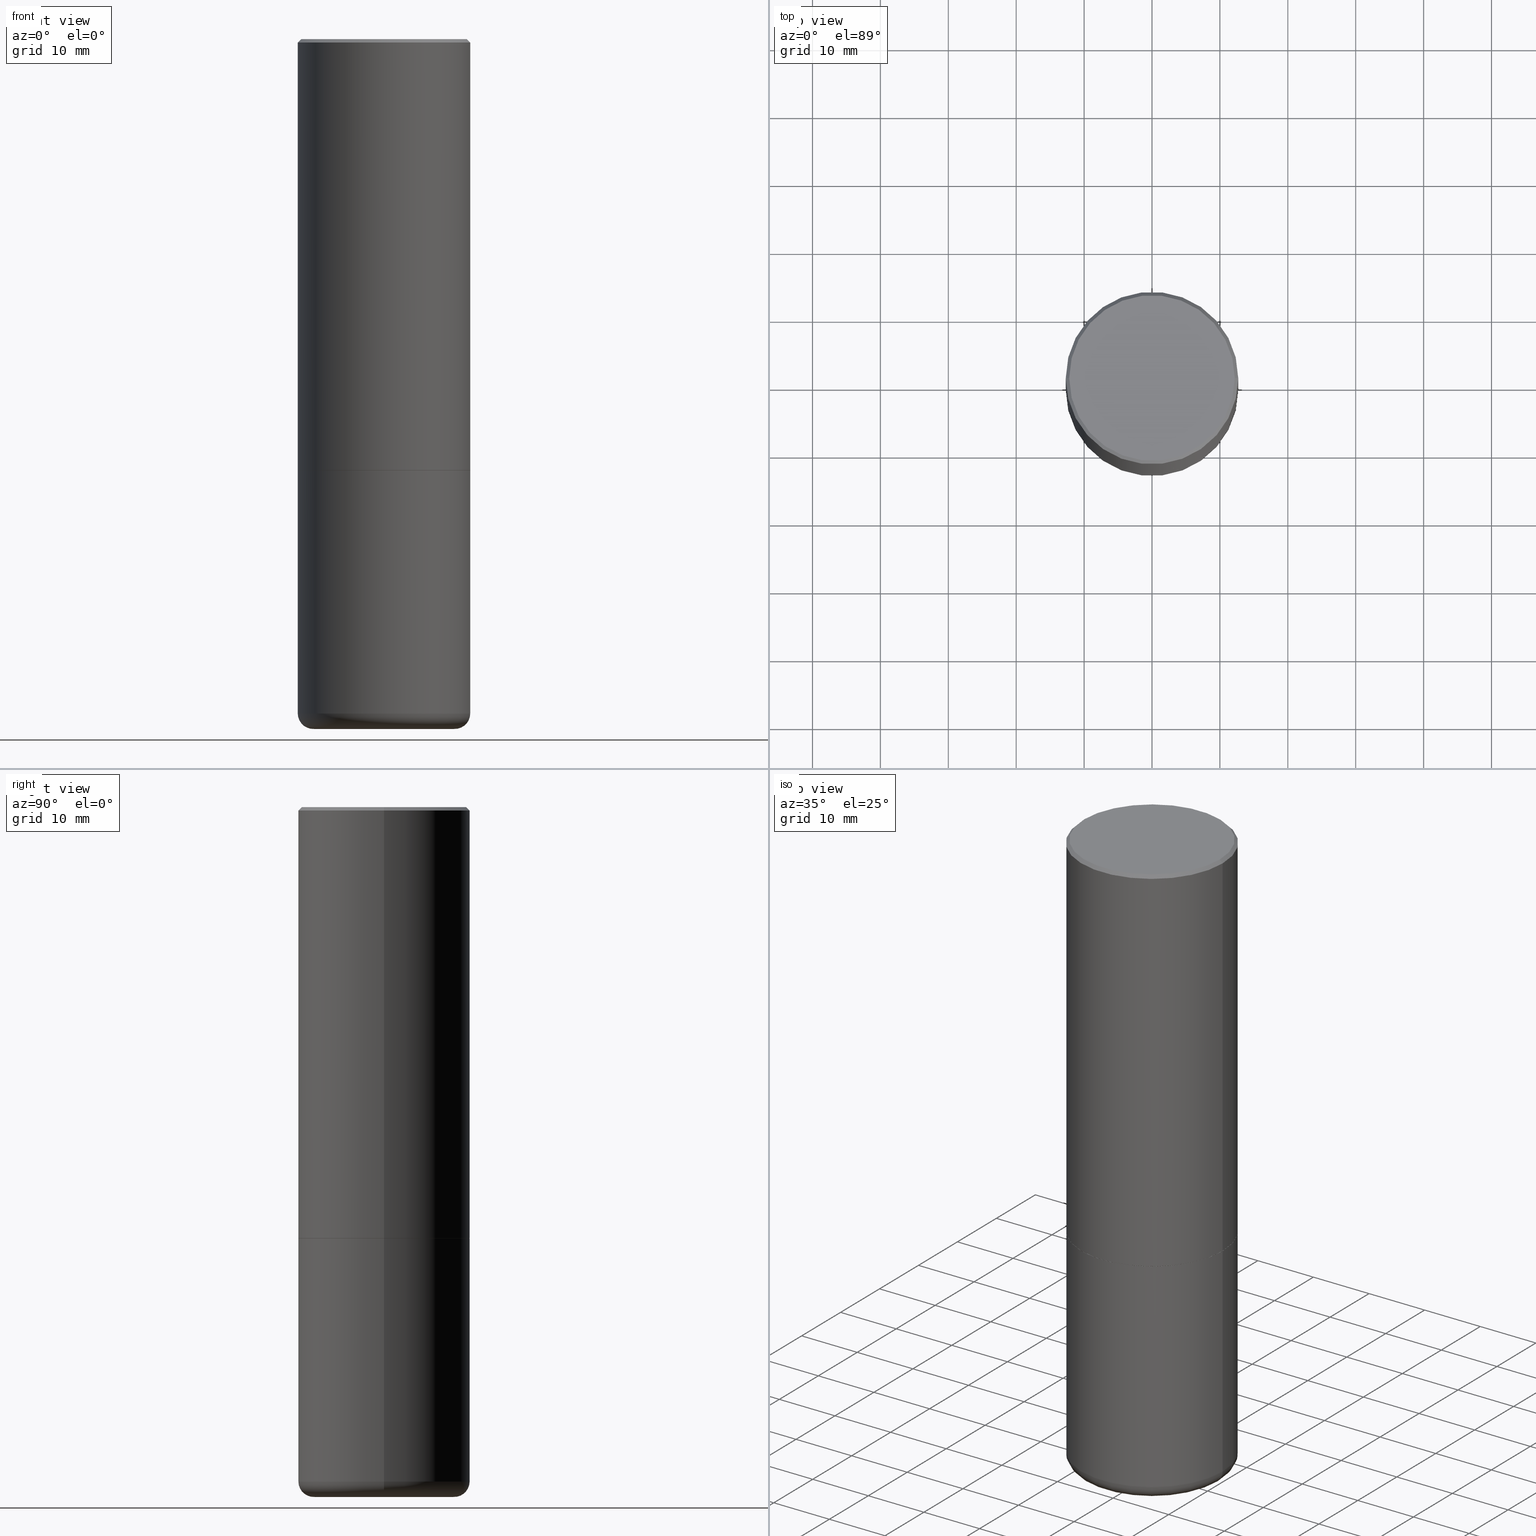
[diagram: canonical four-view strip — front | top / right | iso, engineering-drawing reading convention]
A machine part, canonical four-view strip (front | top / right | iso — engineering-drawing reading convention). The complete STEP part file that produces these views, byte-faithful:
ISO-10303-21;
HEADER;
FILE_DESCRIPTION (( 'STEP AP203' ),
    '1' );
FILE_NAME ('38197.STEP',
    '2023-03-22T20:33:56',
    ( '' ),
    ( '' ),
    'SwSTEP 2.0',
    'SolidWorks 2022',
    '' );
FILE_SCHEMA (( 'CONFIG_CONTROL_DESIGN' ));
ENDSEC;

DATA;
#1 = ORIENTED_EDGE ( 'NONE', *, *, #252, .F. ) ;
#2 = ADVANCED_FACE ( 'NONE', ( #194 ), #157, .F. ) ;
#3 = DATE_AND_TIME ( #32, #404 ) ;
#4 = FACE_OUTER_BOUND ( 'NONE', #440, .T. ) ;
#5 = AXIS2_PLACEMENT_3D ( 'NONE', #48, #201, #128 ) ;
#6 = PRODUCT_DEFINITION_FORMATION_WITH_SPECIFIED_SOURCE ( 'ANY', '', #221, .NOT_KNOWN. ) ;
#7 = DIRECTION ( 'NONE',  ( 1.000000000000000000, -6.982962677686266711E-15, 4.883557194083113462E-29 ) ) ;
#8 = DIRECTION ( 'NONE',  ( 1.000000000000000000, -6.982962677686265922E-15, 4.876176775795935793E-29 ) ) ;
#9 = DIRECTION ( 'NONE',  ( -2.445468806185136597E-29, 3.491481338843145583E-15, 1.000000000000000000 ) ) ;
#10 = FACE_OUTER_BOUND ( 'NONE', #198, .T. ) ;
#11 = FACE_OUTER_BOUND ( 'NONE', #290, .T. ) ;
#12 = CARTESIAN_POINT ( 'NONE',  ( 0.000000000000000000, 0.000000000000000000, 0.000000000000000000 ) ) ;
#13 = CIRCLE ( 'NONE', #323, 0.5000000000000000000 ) ;
#14 = EDGE_LOOP ( 'NONE', ( #214, #168, #322, #349 ) ) ;
#15 = APPROVAL_PERSON_ORGANIZATION ( #131, #420, #159 ) ;
#16 = DIRECTION ( 'NONE',  ( 0.7071067811865467956, -7.319954787623254468E-15, -0.7071067811865482389 ) ) ;
#17 = ORIENTED_EDGE ( 'NONE', *, *, #183, .F. ) ;
#18 = CARTESIAN_POINT ( 'NONE',  ( 3.351822085289405181E-15, 0.4799999999999996492, -1.669508273909558064E-15 ) ) ;
#19 = DIRECTION ( 'NONE',  ( 1.000000000000000000, -6.982962677686267499E-15, 4.876176775795936353E-29 ) ) ;
#20 = CC_DESIGN_PERSON_AND_ORGANIZATION_ASSIGNMENT ( #158, #320, ( #221 ) ) ;
#21 = ORIENTED_EDGE ( 'NONE', *, *, #156, .T. ) ;
#22 = DIRECTION ( 'NONE',  ( 2.445468806185136597E-29, -3.491481338843145583E-15, -1.000000000000000000 ) ) ;
#23 = VERTEX_POINT ( 'NONE', #265 ) ;
#24 = CARTESIAN_POINT ( 'NONE',  ( 0.4999999999999998335, -3.491481338843132566E-15, 2.438088387897967336E-29 ) ) ;
#25 = EDGE_LOOP ( 'NONE', ( #88, #39 ) ) ;
#26 = PERSON_AND_ORGANIZATION ( #408, #43 ) ;
#27 = EDGE_LOOP ( 'NONE', ( #229, #281, #257 ) ) ;
#28 = CONICAL_SURFACE ( 'NONE', #267, 0.4989999999999999991, 0.7853981633972775267 ) ;
#29 = CC_DESIGN_PERSON_AND_ORGANIZATION_ASSIGNMENT ( #441, #230, ( #6 ) ) ;
#30 = DATE_TIME_ROLE ( 'classification_date' ) ;
#31 = ORIENTED_EDGE ( 'NONE', *, *, #225, .T. ) ;
#32 = CALENDAR_DATE ( 2023, 22, 3 ) ;
#33 = VECTOR ( 'NONE', #141, 39.37007874015748143 ) ;
#34 = CC_DESIGN_APPROVAL ( #112, ( #152 ) ) ;
#35 = ORIENTED_EDGE ( 'NONE', *, *, #331, .T. ) ;
#36 = EDGE_CURVE ( 'NONE', #422, #287, #150, .T. ) ;
#37 = ORIENTED_EDGE ( 'NONE', *, *, #311, .T. ) ;
#38 = DIRECTION ( 'NONE',  ( 1.000000000000000000, -6.982962677686266711E-15, 0.000000000000000000 ) ) ;
#39 = ORIENTED_EDGE ( 'NONE', *, *, #60, .F. ) ;
#40 = DIRECTION ( 'NONE',  ( -2.445468806185136597E-29, 3.491481338843145583E-15, 1.000000000000000000 ) ) ;
#41 = CARTESIAN_POINT ( 'NONE',  ( 0.000000000000000000, 0.000000000000000000, 0.000000000000000000 ) ) ;
#42 = CIRCLE ( 'NONE', #285, 0.5000000000000000000 ) ;
#43 = ORGANIZATION ( 'UNSPECIFIED', 'UNSPECIFIED', '' ) ;
#44 = CARTESIAN_POINT ( 'NONE',  ( 1.060082321005189927E-27, -1.513516603469176358E-13, -43.34883840366333629 ) ) ;
#45 = DIRECTION ( 'NONE',  ( 7.105427357601001859E-15, 1.000000000000000000, -3.491481338843145583E-15 ) ) ;
#46 = CARTESIAN_POINT ( 'NONE',  ( 9.562084660884571289E-29, -1.365212268072139138E-14, -3.910123341872087988 ) ) ;
#47 = CARTESIAN_POINT ( 'NONE',  ( -0.4799999999999996492, 3.386736898677836830E-15, 1.280553747027767124E-17 ) ) ;
#48 = CARTESIAN_POINT ( 'NONE',  ( 9.562084660884571289E-29, -1.365212268072139138E-14, -3.910123341872087988 ) ) ;
#49 = DIRECTION ( 'NONE',  ( -0.7071067811864267805, 7.493145998869918709E-15, 0.7071067811866682540 ) ) ;
#50 = AXIS2_PLACEMENT_3D ( 'NONE', #341, #98, #103 ) ;
#51 = ORIENTED_EDGE ( 'NONE', *, *, #331, .F. ) ;
#52 = DIRECTION ( 'NONE',  ( 1.000000000000000000, -6.982962677686266711E-15, 0.000000000000000000 ) ) ;
#53 = EDGE_CURVE ( 'NONE', #391, #155, #396, .T. ) ;
#54 = EDGE_LOOP ( 'NONE', ( #35, #151 ) ) ;
#55 = AXIS2_PLACEMENT_3D ( 'NONE', #44, #304, #234 ) ;
#56 = LOCAL_TIME ( 16, 33, 56.00000000000000000, #399 ) ;
#57 = ORIENTED_EDGE ( 'NONE', *, *, #425, .T. ) ;
#58 = CIRCLE ( 'NONE', #74, 0.08999999999999999667 ) ;
#59 = CONICAL_SURFACE ( 'NONE', #192, 0.4999999999999996669, 0.7853981633974472798 ) ;
#60 = EDGE_CURVE ( 'NONE', #193, #308, #394, .T. ) ;
#61 = ORIENTED_EDGE ( 'NONE', *, *, #280, .T. ) ;
#62 = ORIENTED_EDGE ( 'NONE', *, *, #36, .F. ) ;
#63 = MANIFOLD_SOLID_BREP ( 'Body-Move/Copy2[1]', #363 ) ;
#64 = ADVANCED_FACE ( 'NONE', ( #84 ), #215, .F. ) ;
#65 = AXIS2_PLACEMENT_3D ( 'NONE', #105, #177, #240 ) ;
#66 = ORIENTED_EDGE ( 'NONE', *, *, #297, .T. ) ;
#67 = DIRECTION ( 'NONE',  ( -2.445468806185136597E-29, 3.491481338843145583E-15, 1.000000000000000000 ) ) ;
#68 = DIRECTION ( 'NONE',  ( 1.000000000000000000, -6.982962677686269077E-15, 0.000000000000000000 ) ) ;
#69 = DATE_AND_TIME ( #368, #182 ) ;
#70 = FACE_OUTER_BOUND ( 'NONE', #14, .T. ) ;
#71 = PLANE ( 'NONE',  #345 ) ;
#72 = DIRECTION ( 'NONE',  ( -2.445468806185136597E-29, 3.491481338843145583E-15, 1.000000000000000000 ) ) ;
#73 = CARTESIAN_POINT ( 'NONE',  ( 0.4999999999999996669, -3.500078625662626318E-15, -0.02000000000000002123 ) ) ;
#74 = AXIS2_PLACEMENT_3D ( 'NONE', #145, #45, #175 ) ;
#75 = ADVANCED_FACE ( 'NONE', ( #407 ), #343, .T. ) ;
#76 = CARTESIAN_POINT ( 'NONE',  ( 6.113672015462842613E-29, -8.728703347107864943E-15, -2.500000000000000000 ) ) ;
#77 = CARTESIAN_POINT ( 'NONE',  ( 9.781875224740545266E-29, -1.396592535537258075E-14, -3.999999999999999556 ) ) ;
#78 = ORIENTED_EDGE ( 'NONE', *, *, #379, .T. ) ;
#79 = CARTESIAN_POINT ( 'NONE',  ( -0.5000000000000000000, -8.448070674724403070E-16, -2.499000000000000110 ) ) ;
#80 = DIRECTION ( 'NONE',  ( 1.000000000000000000, -6.982962677686269077E-15, 0.000000000000000000 ) ) ;
#81 = PERSON_AND_ORGANIZATION_ROLE ( 'creator' ) ;
#82 = PLANE ( 'NONE',  #397 ) ;
#83 = EDGE_CURVE ( 'NONE', #187, #155, #357, .T. ) ;
#84 = FACE_OUTER_BOUND ( 'NONE', #25, .T. ) ;
#85 = AXIS2_PLACEMENT_3D ( 'NONE', #302, #347, #8 ) ;
#86 = ORIENTED_EDGE ( 'NONE', *, *, #218, .T. ) ;
#87 = LOCAL_TIME ( 16, 33, 56.00000000000000000, #178 ) ;
#88 = ORIENTED_EDGE ( 'NONE', *, *, #169, .F. ) ;
#89 = FACE_OUTER_BOUND ( 'NONE', #113, .T. ) ;
#90 = CARTESIAN_POINT ( 'NONE',  ( 4.890937612370278413E-31, -6.982962677686297772E-17, -0.02000000000000002123 ) ) ;
#91 = VERTEX_POINT ( 'NONE', #336 ) ;
#92 = APPLICATION_PROTOCOL_DEFINITION ( 'international standard', 'config_control_design', 1994, #291 ) ;
#93 = ADVANCED_FACE ( 'NONE', ( #272 ), #206, .T. ) ;
#94 = AXIS2_PLACEMENT_3D ( 'NONE', #330, #411, #110 ) ;
#95 = EDGE_LOOP ( 'NONE', ( #97, #78, #124 ) ) ;
#96 = DATE_AND_TIME ( #295, #56 ) ;
#97 = ORIENTED_EDGE ( 'NONE', *, *, #355, .F. ) ;
#98 = DIRECTION ( 'NONE',  ( -2.445468806185136597E-29, 3.491481338843145583E-15, 1.000000000000000000 ) ) ;
#99 = VECTOR ( 'NONE', #312, 39.37007874015748143 ) ;
#100 = VERTEX_POINT ( 'NONE', #47 ) ;
#101 = DIRECTION ( 'NONE',  ( -0.9986295347545742773, 6.790662755453666100E-15, -0.05233595624293709697 ) ) ;
#102 = DIRECTION ( 'NONE',  ( 1.000000000000000000, -6.982962677686266711E-15, 0.000000000000000000 ) ) ;
#103 = DIRECTION ( 'NONE',  ( 1.000000000000000000, -6.982962677686269077E-15, 0.000000000000000000 ) ) ;
#104 = CC_DESIGN_PERSON_AND_ORGANIZATION_ASSIGNMENT ( #409, #259, ( #6 ) ) ;
#105 = CARTESIAN_POINT ( 'NONE',  ( 6.111226546656657010E-29, -8.725211865769021935E-15, -2.499000000000000110 ) ) ;
#106 = LINE ( 'NONE', #176, #33 ) ;
#107 = DIRECTION ( 'NONE',  ( -2.445468806185136597E-29, 3.491481338843145583E-15, 1.000000000000000000 ) ) ;
#108 = CIRCLE ( 'NONE', #94, 0.4999999999999996669 ) ;
#109 = DIRECTION ( 'NONE',  ( 2.445468806185136597E-29, -3.491481338843145583E-15, -1.000000000000000000 ) ) ;
#110 = DIRECTION ( 'NONE',  ( 1.000000000000000000, -6.982962677686266711E-15, 0.000000000000000000 ) ) ;
#111 = CALENDAR_DATE ( 2023, 22, 3 ) ;
#112 = APPROVAL ( #286, 'UNSPECIFIED' ) ;
#113 = EDGE_LOOP ( 'NONE', ( #299, #51, #203, #165 ) ) ;
#114 = DIRECTION ( 'NONE',  ( 1.000000000000000000, -6.982962677686267499E-15, 4.876176775795936353E-29 ) ) ;
#115 = CARTESIAN_POINT ( 'NONE',  ( 0.000000000000000000, 0.000000000000000000, 0.000000000000000000 ) ) ;
#116 = AXIS2_PLACEMENT_3D ( 'NONE', #213, #385, #310 ) ;
#117 = CONICAL_SURFACE ( 'NONE', #395, 0.4999999999999996669, 0.7853981633974472798 ) ;
#118 = ORIENTED_EDGE ( 'NONE', *, *, #53, .T. ) ;
#119 =( CONVERSION_BASED_UNIT ( 'INCH', #288 ) LENGTH_UNIT ( ) NAMED_UNIT ( #369 ) );
#120 = AXIS2_PLACEMENT_3D ( 'NONE', #377, #9, #139 ) ;
#121 = EDGE_CURVE ( 'NONE', #422, #23, #196, .T. ) ;
#122 = DIRECTION ( 'NONE',  ( -6.982962677686266711E-15, -1.000000000000000000, 3.491481338843145583E-15 ) ) ;
#123 = AXIS2_PLACEMENT_3D ( 'NONE', #167, #40, #335 ) ;
#124 = ORIENTED_EDGE ( 'NONE', *, *, #319, .F. ) ;
#125 =( NAMED_UNIT ( * ) SI_UNIT ( $, .STERADIAN. ) SOLID_ANGLE_UNIT ( ) );
#126 = ORIENTED_EDGE ( 'NONE', *, *, #60, .T. ) ;
#127 = APPROVAL_STATUS ( 'not_yet_approved' ) ;
#128 = DIRECTION ( 'NONE',  ( 1.000000000000000000, -6.982962677686266711E-15, 0.000000000000000000 ) ) ;
#129 = DIRECTION ( 'NONE',  ( -1.000000000000000000, 6.982962677686265922E-15, 0.000000000000000000 ) ) ;
#130 = CC_DESIGN_DATE_AND_TIME_ASSIGNMENT ( #3, #30, ( #432 ) ) ;
#131 = PERSON_AND_ORGANIZATION ( #408, #43 ) ;
#132 = DIRECTION ( 'NONE',  ( 1.000000000000000000, -6.982962677686266711E-15, 0.000000000000000000 ) ) ;
#133 = AXIS2_PLACEMENT_3D ( 'NONE', #374, #378, #413 ) ;
#134 = CC_DESIGN_SECURITY_CLASSIFICATION ( #432, ( #6 ) ) ;
#135 = CARTESIAN_POINT ( 'NONE',  ( -0.4999999999999996669, 3.421651712066268085E-15, -0.02000000000000002123 ) ) ;
#136 = EDGE_CURVE ( 'NONE', #391, #360, #171, .T. ) ;
#137 = DIRECTION ( 'NONE',  ( 1.000000000000000000, -6.982962677686265133E-15, 0.000000000000000000 ) ) ;
#138 = DIRECTION ( 'NONE',  ( -2.445468806185136597E-29, 3.491481338843145583E-15, 1.000000000000000000 ) ) ;
#139 = DIRECTION ( 'NONE',  ( 1.000000000000000000, -6.982962677686267499E-15, 4.876036955247132767E-29 ) ) ;
#140 = CARTESIAN_POINT ( 'NONE',  ( 3.491481338843194098E-15, 0.4999999999999912292, -2.500000000000001776 ) ) ;
#141 = DIRECTION ( 'NONE',  ( 0.9986295347545742773, -7.033825938271998700E-15, -0.05233595624293709697 ) ) ;
#142 = CARTESIAN_POINT ( 'NONE',  ( -0.4999999999999998335, 3.552713678800499746E-15, -2.459467545127452330E-29 ) ) ;
#143 = VECTOR ( 'NONE', #16, 39.37007874015748143 ) ;
#144 = EDGE_CURVE ( 'NONE', #287, #253, #339, .T. ) ;
#145 = CARTESIAN_POINT ( 'NONE',  ( -0.4099999999999999756, -1.073889746410498118E-14, -3.910123341872087988 ) ) ;
#146 = COORDINATED_UNIVERSAL_TIME_OFFSET ( 5, 0, .BEHIND. ) ;
#147 = CARTESIAN_POINT ( 'NONE',  ( 9.562084660884571289E-29, -1.365212268072139138E-14, -3.910123341872087988 ) ) ;
#148 = ADVANCED_BREP_SHAPE_REPRESENTATION ( '38197', ( #63, #361, #376 ), #268 ) ;
#149 = DIRECTION ( 'NONE',  ( -1.000000000000000000, 6.982962677686266711E-15, 0.000000000000000000 ) ) ;
#150 = CIRCLE ( 'NONE', #318, 0.08999999999999999667 ) ;
#151 = ORIENTED_EDGE ( 'NONE', *, *, #263, .T. ) ;
#152 = PRODUCT_DEFINITION ( 'UNKNOWN', '', #6, #356 ) ;
#153 = PRODUCT_DEFINITION_SHAPE ( 'NONE', 'NONE',  #152 ) ;
#154 = ORIENTED_EDGE ( 'NONE', *, *, #263, .F. ) ;
#155 = VERTEX_POINT ( 'NONE', #135 ) ;
#156 = EDGE_CURVE ( 'NONE', #193, #391, #246, .T. ) ;
#157 = CONICAL_SURFACE ( 'NONE', #392, 751.2258538476644389, 1.518436449235073482 ) ;
#158 = PERSON_AND_ORGANIZATION ( #408, #43 ) ;
#159 = APPROVAL_ROLE ( '' ) ;
#160 =( NAMED_UNIT ( * ) PLANE_ANGLE_UNIT ( ) SI_UNIT ( $, .RADIAN. ) );
#161 = AXIS2_PLACEMENT_3D ( 'NONE', #147, #174, #38 ) ;
#162 = CC_DESIGN_APPROVAL ( #342, ( #6 ) ) ;
#163 = CALENDAR_DATE ( 2023, 22, 3 ) ;
#164 = ORIENTED_EDGE ( 'NONE', *, *, #297, .F. ) ;
#165 = ORIENTED_EDGE ( 'NONE', *, *, #183, .T. ) ;
#166 = PERSON_AND_ORGANIZATION_ROLE ( 'classification_officer' ) ;
#167 = CARTESIAN_POINT ( 'NONE',  ( 0.000000000000000000, 0.000000000000000000, 0.000000000000000000 ) ) ;
#168 = ORIENTED_EDGE ( 'NONE', *, *, #319, .T. ) ;
#169 = EDGE_CURVE ( 'NONE', #308, #193, #254, .T. ) ;
#170 = DIRECTION ( 'NONE',  ( -2.445468806185136597E-29, 3.491481338843145583E-15, 1.000000000000000000 ) ) ;
#171 = CIRCLE ( 'NONE', #65, 0.5000000000000000000 ) ;
#172 = VECTOR ( 'NONE', #251, 39.37007874015748143 ) ;
#173 = CARTESIAN_POINT ( 'NONE',  ( 6.113672015462842613E-29, -8.728703347107866520E-15, -2.500000000000000444 ) ) ;
#174 = DIRECTION ( 'NONE',  ( -2.445468806185136597E-29, 3.491481338843145583E-15, 1.000000000000000000 ) ) ;
#175 = DIRECTION ( 'NONE',  ( -1.000000000000000000, 7.105427357600990815E-15, 0.000000000000000000 ) ) ;
#176 = CARTESIAN_POINT ( 'NONE',  ( 2.030142708170916677E-18, -1.389176511687253156E-14, -3.978759663505856636 ) ) ;
#177 = DIRECTION ( 'NONE',  ( -2.445468806185136597E-29, 3.491481338843145583E-15, 1.000000000000000000 ) ) ;
#178 = COORDINATED_UNIVERSAL_TIME_OFFSET ( 5, 0, .BEHIND. ) ;
#179 = EDGE_LOOP ( 'NONE', ( #316, #21, #224, #427 ) ) ;
#180 = DIRECTION ( 'NONE',  ( -2.445468806185136597E-29, 3.491481338843145583E-15, 1.000000000000000000 ) ) ;
#181 = DIRECTION ( 'NONE',  ( -2.445468806185136597E-29, 3.491481338843145583E-15, 1.000000000000000000 ) ) ;
#182 = LOCAL_TIME ( 16, 33, 56.00000000000000000, #348 ) ;
#183 = EDGE_CURVE ( 'NONE', #155, #187, #108, .T. ) ;
#184 = FACE_OUTER_BOUND ( 'NONE', #54, .T. ) ;
#185 = DIRECTION ( 'NONE',  ( 1.000000000000000000, -6.982962677686269077E-15, 0.000000000000000000 ) ) ;
#186 = PERSON_AND_ORGANIZATION ( #408, #43 ) ;
#187 = VERTEX_POINT ( 'NONE', #73 ) ;
#188 = DIRECTION ( 'NONE',  ( 2.438088387897960049E-29, -3.491481338843145188E-15, -1.000000000000000000 ) ) ;
#189 = CC_DESIGN_PERSON_AND_ORGANIZATION_ASSIGNMENT ( #279, #81, ( #152 ) ) ;
#190 = LINE ( 'NONE', #220, #242 ) ;
#191 = TOROIDAL_SURFACE ( 'NONE', #300, 0.4099999999999999756, 0.08999999999999998279 ) ;
#192 = AXIS2_PLACEMENT_3D ( 'NONE', #415, #109, #381 ) ;
#193 = VERTEX_POINT ( 'NONE', #237 ) ;
#194 = FACE_OUTER_BOUND ( 'NONE', #95, .T. ) ;
#195 = EDGE_CURVE ( 'NONE', #253, #314, #275, .T. ) ;
#196 = CIRCLE ( 'NONE', #258, 0.4052897639381357053 ) ;
#197 = ORIENTED_EDGE ( 'NONE', *, *, #195, .F. ) ;
#198 = EDGE_LOOP ( 'NONE', ( #384, #66 ) ) ;
#199 = AXIS2_PLACEMENT_3D ( 'NONE', #269, #67, #327 ) ;
#200 = EDGE_LOOP ( 'NONE', ( #380, #57, #197, #296 ) ) ;
#201 = DIRECTION ( 'NONE',  ( -2.445468806185136597E-29, 3.491481338843145583E-15, 1.000000000000000000 ) ) ;
#202 = ADVANCED_FACE ( 'NONE', ( #305 ), #375, .T. ) ;
#203 = ORIENTED_EDGE ( 'NONE', *, *, #256, .T. ) ;
#204 = PERSON_AND_ORGANIZATION ( #408, #43 ) ;
#205 = LINE ( 'NONE', #273, #216 ) ;
#206 = CYLINDRICAL_SURFACE ( 'NONE', #386, 0.4999999999999998335 ) ;
#207 = AXIS2_PLACEMENT_3D ( 'NONE', #173, #181, #52 ) ;
#208 = DIRECTION ( 'NONE',  ( -0.7071067811865467956, 2.468850131082249172E-15, -0.7071067811865482389 ) ) ;
#209 = APPROVAL_PERSON_ORGANIZATION ( #186, #342, #426 ) ;
#210 = LINE ( 'NONE', #372, #143 ) ;
#211 = DIRECTION ( 'NONE',  ( -2.445468806185136597E-29, 3.491481338843145583E-15, 1.000000000000000000 ) ) ;
#212 = DIRECTION ( 'NONE',  ( -2.445468806185136597E-29, 3.491481338843145583E-15, 1.000000000000000000 ) ) ;
#213 = CARTESIAN_POINT ( 'NONE',  ( 6.113672015462842613E-29, -8.728703347107866520E-15, -2.500000000000000444 ) ) ;
#214 = ORIENTED_EDGE ( 'NONE', *, *, #225, .F. ) ;
#215 = PLANE ( 'NONE',  #85 ) ;
#216 = VECTOR ( 'NONE', #101, 39.37007874015748143 ) ;
#217 = DATE_AND_TIME ( #111, #87 ) ;
#218 = EDGE_CURVE ( 'NONE', #340, #187, #210, .T. ) ;
#219 = EDGE_LOOP ( 'NONE', ( #154, #86, #417, #359 ) ) ;
#220 = CARTESIAN_POINT ( 'NONE',  ( -0.5000000000000000000, 3.552713678800500929E-15, -2.459467545127452891E-29 ) ) ;
#221 = PRODUCT ( '38197', '38197', '', ( #433 ) ) ;
#222 = AXIS2_PLACEMENT_3D ( 'NONE', #46, #180, #7 ) ;
#223 = VECTOR ( 'NONE', #418, 39.37007874015748143 ) ;
#224 = ORIENTED_EDGE ( 'NONE', *, *, #311, .F. ) ;
#225 = EDGE_CURVE ( 'NONE', #23, #313, #58, .T. ) ;
#226 = VECTOR ( 'NONE', #274, 39.37007874015748143 ) ;
#227 = CC_DESIGN_DATE_AND_TIME_ASSIGNMENT ( #366, #289, ( #152 ) ) ;
#228 = APPROVAL_DATE_TIME ( #69, #342 ) ;
#229 = ORIENTED_EDGE ( 'NONE', *, *, #379, .F. ) ;
#230 = PERSON_AND_ORGANIZATION_ROLE ( 'design_supplier' ) ;
#231 = EDGE_LOOP ( 'NONE', ( #321, #247, #235, #17 ) ) ;
#232 = CIRCLE ( 'NONE', #5, 0.5000000000000000000 ) ;
#233 = ADVANCED_FACE ( 'NONE', ( #10 ), #71, .F. ) ;
#234 = DIRECTION ( 'NONE',  ( -1.000000000000000000, 6.982962677686265922E-15, 0.000000000000000000 ) ) ;
#235 = ORIENTED_EDGE ( 'NONE', *, *, #429, .T. ) ;
#236 = CARTESIAN_POINT ( 'NONE',  ( 6.111226546656657010E-29, -8.725211865769021935E-15, -2.499000000000000110 ) ) ;
#237 = CARTESIAN_POINT ( 'NONE',  ( -0.4989999999999999991, -5.177796641316744197E-15, -2.500000000000000444 ) ) ;
#238 = COORDINATED_UNIVERSAL_TIME_OFFSET ( 5, 0, .BEHIND. ) ;
#239 = FACE_OUTER_BOUND ( 'NONE', #367, .T. ) ;
#240 = DIRECTION ( 'NONE',  ( 1.000000000000000000, -6.982962677686265133E-15, 0.000000000000000000 ) ) ;
#241 = CARTESIAN_POINT ( 'NONE',  ( -0.5000000000000000000, -7.637699335114127230E-15, -3.910123341872087988 ) ) ;
#242 = VECTOR ( 'NONE', #346, 39.37007874015748143 ) ;
#243 = DIRECTION ( 'NONE',  ( -2.445468806185136597E-29, 3.491481338843145583E-15, 1.000000000000000000 ) ) ;
#244 = CARTESIAN_POINT ( 'NONE',  ( 0.4989999999999999991, -1.221320172327331386E-14, -2.500000000000000444 ) ) ;
#245 = CARTESIAN_POINT ( 'NONE',  ( 6.113672015462842613E-29, -8.728703347107864943E-15, -2.500000000000000000 ) ) ;
#246 = LINE ( 'NONE', #416, #250 ) ;
#247 = ORIENTED_EDGE ( 'NONE', *, *, #136, .T. ) ;
#248 = ADVANCED_FACE ( 'NONE', ( #282 ), #421, .T. ) ;
#249 = DIRECTION ( 'NONE',  ( -2.445468806185136597E-29, 3.491481338843145583E-15, 1.000000000000000000 ) ) ;
#250 = VECTOR ( 'NONE', #49, 39.37007874015748143 ) ;
#251 = DIRECTION ( 'NONE',  ( 0.7071067811864267805, -2.468850131080992517E-15, 0.7071067811866682540 ) ) ;
#252 = EDGE_CURVE ( 'NONE', #287, #313, #403, .T. ) ;
#253 = VERTEX_POINT ( 'NONE', #442 ) ;
#254 = CIRCLE ( 'NONE', #293, 0.4989999999999999991 ) ;
#255 = DIRECTION ( 'NONE',  ( 0.000000000000000000, 0.000000000000000000, 1.000000000000000000 ) ) ;
#256 = EDGE_CURVE ( 'NONE', #100, #155, #365, .T. ) ;
#257 = ORIENTED_EDGE ( 'NONE', *, *, #121, .F. ) ;
#258 = AXIS2_PLACEMENT_3D ( 'NONE', #77, #211, #185 ) ;
#259 = PERSON_AND_ORGANIZATION_ROLE ( 'creator' ) ;
#260 = DIRECTION ( 'NONE',  ( 1.000000000000000000, 0.000000000000000000, 0.000000000000000000 ) ) ;
#261 = PRODUCT_RELATED_PRODUCT_CATEGORY ( 'detail', '', ( #221 ) ) ;
#262 = ORIENTED_EDGE ( 'NONE', *, *, #136, .F. ) ;
#263 = EDGE_CURVE ( 'NONE', #340, #100, #315, .T. ) ;
#264 = CARTESIAN_POINT ( 'NONE',  ( 9.562084660884571289E-29, -1.365212268072139138E-14, -3.910123341872087988 ) ) ;
#265 = CARTESIAN_POINT ( 'NONE',  ( -0.4052897639381357053, -1.059278869042589352E-14, -3.999999999999999556 ) ) ;
#266 = APPROVAL_DATE_TIME ( #96, #420 ) ;
#267 = AXIS2_PLACEMENT_3D ( 'NONE', #412, #170, #132 ) ;
#268 =( GEOMETRIC_REPRESENTATION_CONTEXT ( 3 ) GLOBAL_UNCERTAINTY_ASSIGNED_CONTEXT ( ( #292 ) ) GLOBAL_UNIT_ASSIGNED_CONTEXT ( ( #119, #160, #125 ) ) REPRESENTATION_CONTEXT ( 'NONE', 'WORKASPACE' ) );
#269 = CARTESIAN_POINT ( 'NONE',  ( -3.131554243005659264E-46, 4.471029511141341874E-32, 1.280553747030123384E-17 ) ) ;
#270 = CARTESIAN_POINT ( 'NONE',  ( 6.113672015462842613E-29, -8.728703347107866520E-15, -2.500000000000000444 ) ) ;
#271 = CARTESIAN_POINT ( 'NONE',  ( -0.4999999999999996669, 3.421651712066268085E-15, -0.02000000000000002123 ) ) ;
#272 = FACE_OUTER_BOUND ( 'NONE', #231, .T. ) ;
#273 = CARTESIAN_POINT ( 'NONE',  ( -2.030142707976318404E-18, -1.389176511687253156E-14, -3.978759663505856636 ) ) ;
#274 = DIRECTION ( 'NONE',  ( -2.445468806185136877E-29, 3.491481338843145188E-15, 1.000000000000000000 ) ) ;
#275 = CIRCLE ( 'NONE', #364, 0.5000000000000000000 ) ;
#276 = FACE_OUTER_BOUND ( 'NONE', #219, .T. ) ;
#277 = CARTESIAN_POINT ( 'NONE',  ( 0.5000000000000000000, -3.491481338843133355E-15, 2.438088387897967896E-29 ) ) ;
#278 = DIRECTION ( 'NONE',  ( 2.438088387897960049E-29, -3.491481338843145188E-15, -1.000000000000000000 ) ) ;
#279 = PERSON_AND_ORGANIZATION ( #408, #43 ) ;
#280 = EDGE_CURVE ( 'NONE', #313, #287, #232, .T. ) ;
#281 = ORIENTED_EDGE ( 'NONE', *, *, #355, .T. ) ;
#282 = FACE_OUTER_BOUND ( 'NONE', #362, .T. ) ;
#283 = ORIENTED_EDGE ( 'NONE', *, *, #121, .T. ) ;
#284 = CARTESIAN_POINT ( 'NONE',  ( 0.4052897639381357053, -1.679604865060086105E-14, -3.999999999999999556 ) ) ;
#285 = AXIS2_PLACEMENT_3D ( 'NONE', #236, #72, #137 ) ;
#286 = APPROVAL_STATUS ( 'not_yet_approved' ) ;
#287 = VERTEX_POINT ( 'NONE', #401 ) ;
#288 = LENGTH_MEASURE_WITH_UNIT ( LENGTH_MEASURE( 0.02539999999999999897 ), #354 );
#289 = DATE_TIME_ROLE ( 'creation_date' ) ;
#290 = EDGE_LOOP ( 'NONE', ( #298, #61, #326, #164 ) ) ;
#291 = APPLICATION_CONTEXT ( 'configuration controlled 3d designs of mechanical parts and assemblies' ) ;
#292 = UNCERTAINTY_MEASURE_WITH_UNIT (LENGTH_MEASURE( 1.000000000000000082E-05 ), #119, 'distance_accuracy_value', 'NONE');
#293 = AXIS2_PLACEMENT_3D ( 'NONE', #270, #138, #102 ) ;
#294 = ADVANCED_FACE ( 'NONE', ( #11 ), #306, .T. ) ;
#295 = CALENDAR_DATE ( 2023, 22, 3 ) ;
#296 = ORIENTED_EDGE ( 'NONE', *, *, #144, .F. ) ;
#297 = EDGE_CURVE ( 'NONE', #314, #253, #13, .T. ) ;
#298 = ORIENTED_EDGE ( 'NONE', *, *, #425, .F. ) ;
#299 = ORIENTED_EDGE ( 'NONE', *, *, #218, .F. ) ;
#300 = AXIS2_PLACEMENT_3D ( 'NONE', #264, #406, #410 ) ;
#301 = FACE_OUTER_BOUND ( 'NONE', #27, .T. ) ;
#302 = CARTESIAN_POINT ( 'NONE',  ( 6.113672015462842613E-29, -8.728703347107864943E-15, -2.500000000000000000 ) ) ;
#303 = ADVANCED_FACE ( 'NONE', ( #239 ), #191, .T. ) ;
#304 = DIRECTION ( 'NONE',  ( 2.445468806185136597E-29, -3.491481338843145583E-15, -1.000000000000000000 ) ) ;
#305 = FACE_OUTER_BOUND ( 'NONE', #179, .T. ) ;
#306 = CYLINDRICAL_SURFACE ( 'NONE', #123, 0.5000000000000000000 ) ;
#307 = DIRECTION ( 'NONE',  ( 1.000000000000000000, -6.982962677686266711E-15, 4.876176775795935793E-29 ) ) ;
#308 = VERTEX_POINT ( 'NONE', #244 ) ;
#309 = CONICAL_SURFACE ( 'NONE', #55, 751.2258538476644389, 1.518436449235073482 ) ;
#310 = DIRECTION ( 'NONE',  ( 1.000000000000000000, -6.982962677686266711E-15, 0.000000000000000000 ) ) ;
#311 = EDGE_CURVE ( 'NONE', #360, #391, #42, .T. ) ;
#312 = DIRECTION ( 'NONE',  ( -2.445468806185136877E-29, 3.491481338843145188E-15, 1.000000000000000000 ) ) ;
#313 = VERTEX_POINT ( 'NONE', #241 ) ;
#314 = VERTEX_POINT ( 'NONE', #370 ) ;
#315 = CIRCLE ( 'NONE', #199, 0.4799999999999996492 ) ;
#316 = ORIENTED_EDGE ( 'NONE', *, *, #169, .T. ) ;
#317 = CARTESIAN_POINT ( 'NONE',  ( 1.060082321005189927E-27, -1.513516603469176358E-13, -43.34883840366333629 ) ) ;
#318 = AXIS2_PLACEMENT_3D ( 'NONE', #402, #122, #68 ) ;
#319 = EDGE_CURVE ( 'NONE', #23, #422, #334, .T. ) ;
#320 = PERSON_AND_ORGANIZATION_ROLE ( 'design_owner' ) ;
#321 = ORIENTED_EDGE ( 'NONE', *, *, #53, .F. ) ;
#322 = ORIENTED_EDGE ( 'NONE', *, *, #36, .T. ) ;
#323 = AXIS2_PLACEMENT_3D ( 'NONE', #76, #212, #373 ) ;
#324 = CC_DESIGN_APPROVAL ( #420, ( #432 ) ) ;
#325 = ADVANCED_FACE ( 'NONE', ( #301 ), #309, .F. ) ;
#326 = ORIENTED_EDGE ( 'NONE', *, *, #144, .T. ) ;
#327 = DIRECTION ( 'NONE',  ( 1.000000000000000000, -6.982962677686267499E-15, 4.876036955247132767E-29 ) ) ;
#328 = ORIENTED_EDGE ( 'NONE', *, *, #83, .F. ) ;
#329 = CARTESIAN_POINT ( 'NONE',  ( 0.5000000000000000000, -1.221669320461215371E-14, -2.499000000000000110 ) ) ;
#330 = CARTESIAN_POINT ( 'NONE',  ( 4.890937612370278413E-31, -6.982962677686297772E-17, -0.02000000000000002123 ) ) ;
#331 = EDGE_CURVE ( 'NONE', #100, #340, #414, .T. ) ;
#332 = AXIS2_PLACEMENT_3D ( 'NONE', #12, #107, #307 ) ;
#333 = APPLICATION_CONTEXT ( 'configuration controlled 3d designs of mechanical parts and assemblies' ) ;
#334 = CIRCLE ( 'NONE', #50, 0.4052897639381357053 ) ;
#335 = DIRECTION ( 'NONE',  ( 1.000000000000000000, -6.982962677686266711E-15, 4.876176775795935793E-29 ) ) ;
#336 = CARTESIAN_POINT ( 'NONE',  ( 9.731350285487328509E-29, -1.388973497416445833E-14, -3.978759663505856636 ) ) ;
#337 = CC_DESIGN_PERSON_AND_ORGANIZATION_ASSIGNMENT ( #204, #166, ( #432 ) ) ;
#338 = CARTESIAN_POINT ( 'NONE',  ( 0.4799999999999996492, -3.396558832296479338E-15, 1.280553747032483033E-17 ) ) ;
#339 = LINE ( 'NONE', #277, #99 ) ;
#340 = VERTEX_POINT ( 'NONE', #338 ) ;
#341 = CARTESIAN_POINT ( 'NONE',  ( 9.781875224740545266E-29, -1.396592535537258075E-14, -3.999999999999999556 ) ) ;
#342 = APPROVAL ( #430, 'UNSPECIFIED' ) ;
#343 = CYLINDRICAL_SURFACE ( 'NONE', #332, 0.5000000000000000000 ) ;
#344 = ORIENTED_EDGE ( 'NONE', *, *, #436, .T. ) ;
#345 = AXIS2_PLACEMENT_3D ( 'NONE', #140, #278, #419 ) ;
#346 = DIRECTION ( 'NONE',  ( -2.445468806185136877E-29, 3.491481338843145188E-15, 1.000000000000000000 ) ) ;
#347 = DIRECTION ( 'NONE',  ( -2.438088387897960049E-29, 3.491481338843145188E-15, 1.000000000000000000 ) ) ;
#348 = COORDINATED_UNIVERSAL_TIME_OFFSET ( 5, 0, .BEHIND. ) ;
#349 = ORIENTED_EDGE ( 'NONE', *, *, #280, .F. ) ;
#350 = ADVANCED_FACE ( 'NONE', ( #70 ), #437, .T. ) ;
#351 = LINE ( 'NONE', #424, #172 ) ;
#352 = CLOSED_SHELL ( 'NONE', ( #202, #248, #389, #405, #93, #371, #64, #393 ) ) ;
#353 = ORIENTED_EDGE ( 'NONE', *, *, #429, .F. ) ;
#354 =( LENGTH_UNIT ( ) NAMED_UNIT ( * ) SI_UNIT ( $, .METRE. ) );
#355 = EDGE_CURVE ( 'NONE', #91, #23, #205, .T. ) ;
#356 = DESIGN_CONTEXT ( 'detailed design', #333, 'design' ) ;
#357 = CIRCLE ( 'NONE', #133, 0.4999999999999996669 ) ;
#358 = APPROVAL_PERSON_ORGANIZATION ( #26, #112, #390 ) ;
#359 = ORIENTED_EDGE ( 'NONE', *, *, #256, .F. ) ;
#360 = VERTEX_POINT ( 'NONE', #329 ) ;
#361 = MANIFOLD_SOLID_BREP ( 'Body-Move/Copy2[2]', #352 ) ;
#362 = EDGE_LOOP ( 'NONE', ( #37, #118, #328, #353 ) ) ;
#363 = CLOSED_SHELL ( 'NONE', ( #2, #303, #75, #233, #294, #350, #325 ) ) ;
#364 = AXIS2_PLACEMENT_3D ( 'NONE', #245, #382, #80 ) ;
#365 = LINE ( 'NONE', #271, #423 ) ;
#366 = DATE_AND_TIME ( #163, #438 ) ;
#367 = EDGE_LOOP ( 'NONE', ( #283, #31, #1, #62 ) ) ;
#368 = CALENDAR_DATE ( 2023, 22, 3 ) ;
#369 = DIMENSIONAL_EXPONENTS ( 1.000000000000000000, 0.000000000000000000, 0.000000000000000000, 0.000000000000000000, 0.000000000000000000, 0.000000000000000000, 0.000000000000000000 ) ;
#370 = CARTESIAN_POINT ( 'NONE',  ( -0.5000000000000000000, -7.637699335114127230E-15, -2.500000000000000000 ) ) ;
#371 = ADVANCED_FACE ( 'NONE', ( #4 ), #28, .T. ) ;
#372 = CARTESIAN_POINT ( 'NONE',  ( 0.4999999999999996669, -3.500078625662626318E-15, -0.02000000000000002123 ) ) ;
#373 = DIRECTION ( 'NONE',  ( 1.000000000000000000, -6.982962677686269077E-15, 0.000000000000000000 ) ) ;
#374 = CARTESIAN_POINT ( 'NONE',  ( 4.890937612370278413E-31, -6.982962677686297772E-17, -0.02000000000000002123 ) ) ;
#375 = CONICAL_SURFACE ( 'NONE', #116, 0.4989999999999999991, 0.7853981633972775267 ) ;
#376 = AXIS2_PLACEMENT_3D ( 'NONE', #428, #255, #260 ) ;
#377 = CARTESIAN_POINT ( 'NONE',  ( -3.131554243005659264E-46, 4.471029511141341874E-32, 1.280553747030123384E-17 ) ) ;
#378 = DIRECTION ( 'NONE',  ( -2.445468806185136597E-29, 3.491481338843145583E-15, 1.000000000000000000 ) ) ;
#379 = EDGE_CURVE ( 'NONE', #91, #422, #106, .T. ) ;
#380 = ORIENTED_EDGE ( 'NONE', *, *, #252, .T. ) ;
#381 = DIRECTION ( 'NONE',  ( -1.000000000000000000, 6.982962677686266711E-15, 0.000000000000000000 ) ) ;
#382 = DIRECTION ( 'NONE',  ( -2.445468806185136597E-29, 3.491481338843145583E-15, 1.000000000000000000 ) ) ;
#383 = APPROVAL_DATE_TIME ( #217, #112 ) ;
#384 = ORIENTED_EDGE ( 'NONE', *, *, #195, .T. ) ;
#385 = DIRECTION ( 'NONE',  ( -2.445468806185136597E-29, 3.491481338843145583E-15, 1.000000000000000000 ) ) ;
#386 = AXIS2_PLACEMENT_3D ( 'NONE', #41, #243, #114 ) ;
#387 = DIRECTION ( 'NONE',  ( -1.000000000000000000, 6.982962677686265922E-15, -4.876176775795935793E-29 ) ) ;
#388 = LINE ( 'NONE', #24, #223 ) ;
#389 = ADVANCED_FACE ( 'NONE', ( #276 ), #59, .T. ) ;
#390 = APPROVAL_ROLE ( '' ) ;
#391 = VERTEX_POINT ( 'NONE', #79 ) ;
#392 = AXIS2_PLACEMENT_3D ( 'NONE', #317, #434, #129 ) ;
#393 = ADVANCED_FACE ( 'NONE', ( #184 ), #82, .F. ) ;
#394 = CIRCLE ( 'NONE', #207, 0.4989999999999999991 ) ;
#395 = AXIS2_PLACEMENT_3D ( 'NONE', #90, #22, #149 ) ;
#396 = LINE ( 'NONE', #142, #226 ) ;
#397 = AXIS2_PLACEMENT_3D ( 'NONE', #18, #188, #387 ) ;
#398 = APPLICATION_PROTOCOL_DEFINITION ( 'international standard', 'config_control_design', 1994, #333 ) ;
#399 = COORDINATED_UNIVERSAL_TIME_OFFSET ( 5, 0, .BEHIND. ) ;
#400 = ORIENTED_EDGE ( 'NONE', *, *, #156, .F. ) ;
#401 = CARTESIAN_POINT ( 'NONE',  ( 0.5000000000000000000, -1.714360401956452473E-14, -3.910123341872087988 ) ) ;
#402 = CARTESIAN_POINT ( 'NONE',  ( 0.4099999999999999756, -1.651513737857276136E-14, -3.910123341872087988 ) ) ;
#403 = CIRCLE ( 'NONE', #161, 0.5000000000000000000 ) ;
#404 = LOCAL_TIME ( 16, 33, 56.00000000000000000, #238 ) ;
#405 = ADVANCED_FACE ( 'NONE', ( #89 ), #117, .T. ) ;
#406 = DIRECTION ( 'NONE',  ( -2.445468806185136597E-29, 3.491481338843145583E-15, 1.000000000000000000 ) ) ;
#407 = FACE_OUTER_BOUND ( 'NONE', #200, .T. ) ;
#408 = PERSON ( 'UNSPECIFIED', 'UNSPECIFIED', 'UNSPECIFIED', ('UNSPECIFIED'), ('UNSPECIFIED'), ('UNSPECIFIED') ) ;
#409 = PERSON_AND_ORGANIZATION ( #408, #43 ) ;
#410 = DIRECTION ( 'NONE',  ( 1.000000000000000000, -6.982962677686266711E-15, 4.883557194083113462E-29 ) ) ;
#411 = DIRECTION ( 'NONE',  ( -2.445468806185136597E-29, 3.491481338843145583E-15, 1.000000000000000000 ) ) ;
#412 = CARTESIAN_POINT ( 'NONE',  ( 6.113672015462842613E-29, -8.728703347107866520E-15, -2.500000000000000444 ) ) ;
#413 = DIRECTION ( 'NONE',  ( 1.000000000000000000, -6.982962677686266711E-15, 0.000000000000000000 ) ) ;
#414 = CIRCLE ( 'NONE', #120, 0.4799999999999996492 ) ;
#415 = CARTESIAN_POINT ( 'NONE',  ( 4.890937612370278413E-31, -6.982962677686297772E-17, -0.02000000000000002123 ) ) ;
#416 = CARTESIAN_POINT ( 'NONE',  ( -0.4989999999999999991, -5.183095095664967388E-15, -2.500000000000000444 ) ) ;
#417 = ORIENTED_EDGE ( 'NONE', *, *, #83, .T. ) ;
#418 = DIRECTION ( 'NONE',  ( -2.445468806185136877E-29, 3.491481338843145188E-15, 1.000000000000000000 ) ) ;
#419 = DIRECTION ( 'NONE',  ( -1.000000000000000000, 6.982962677686265922E-15, -4.876176775795935793E-29 ) ) ;
#420 = APPROVAL ( #127, 'UNSPECIFIED' ) ;
#421 = CYLINDRICAL_SURFACE ( 'NONE', #431, 0.4999999999999998335 ) ;
#422 = VERTEX_POINT ( 'NONE', #284 ) ;
#423 = VECTOR ( 'NONE', #208, 39.37007874015748143 ) ;
#424 = CARTESIAN_POINT ( 'NONE',  ( 0.4989999999999999991, -1.221320172327331386E-14, -2.500000000000000444 ) ) ;
#425 = EDGE_CURVE ( 'NONE', #313, #314, #190, .T. ) ;
#426 = APPROVAL_ROLE ( '' ) ;
#427 = ORIENTED_EDGE ( 'NONE', *, *, #436, .F. ) ;
#428 = CARTESIAN_POINT ( 'NONE',  ( 0.000000000000000000, 0.000000000000000000, 0.000000000000000000 ) ) ;
#429 = EDGE_CURVE ( 'NONE', #360, #187, #388, .T. ) ;
#430 = APPROVAL_STATUS ( 'not_yet_approved' ) ;
#431 = AXIS2_PLACEMENT_3D ( 'NONE', #115, #249, #19 ) ;
#432 = SECURITY_CLASSIFICATION ( '', '', #439 ) ;
#433 = MECHANICAL_CONTEXT ( 'NONE', #291, 'mechanical' ) ;
#434 = DIRECTION ( 'NONE',  ( 2.445468806185136597E-29, -3.491481338843145583E-15, -1.000000000000000000 ) ) ;
#435 = SHAPE_DEFINITION_REPRESENTATION ( #153, #148 ) ;
#436 = EDGE_CURVE ( 'NONE', #308, #360, #351, .T. ) ;
#437 = TOROIDAL_SURFACE ( 'NONE', #222, 0.4099999999999999756, 0.08999999999999998279 ) ;
#438 = LOCAL_TIME ( 16, 33, 56.00000000000000000, #146 ) ;
#439 = SECURITY_CLASSIFICATION_LEVEL ( 'unclassified' ) ;
#440 = EDGE_LOOP ( 'NONE', ( #400, #126, #344, #262 ) ) ;
#441 = PERSON_AND_ORGANIZATION ( #408, #43 ) ;
#442 = CARTESIAN_POINT ( 'NONE',  ( 0.5000000000000000000, -1.222018468595099830E-14, -2.500000000000000000 ) ) ;
ENDSEC;
END-ISO-10303-21;
